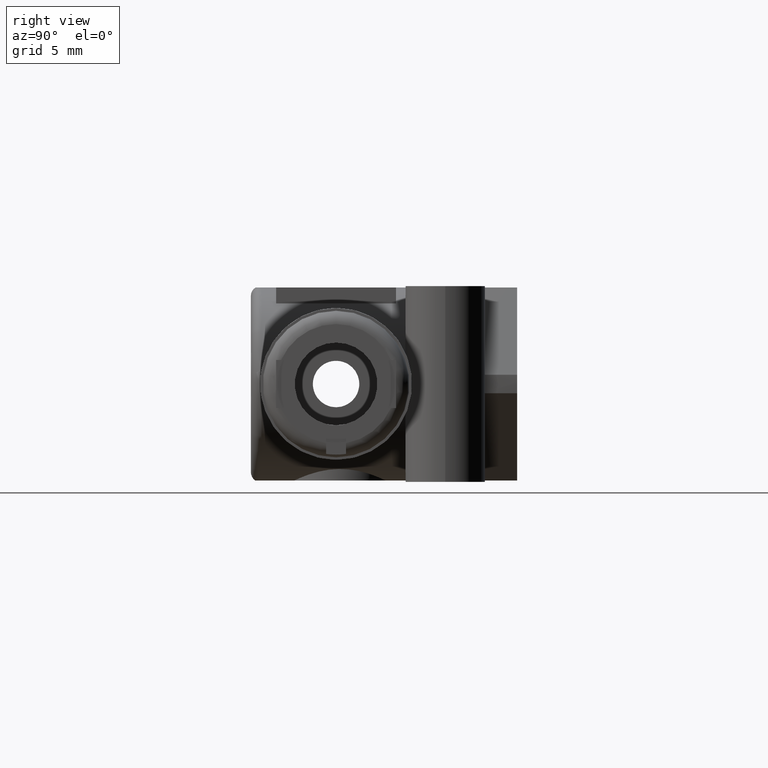
[diagram: clean part render]
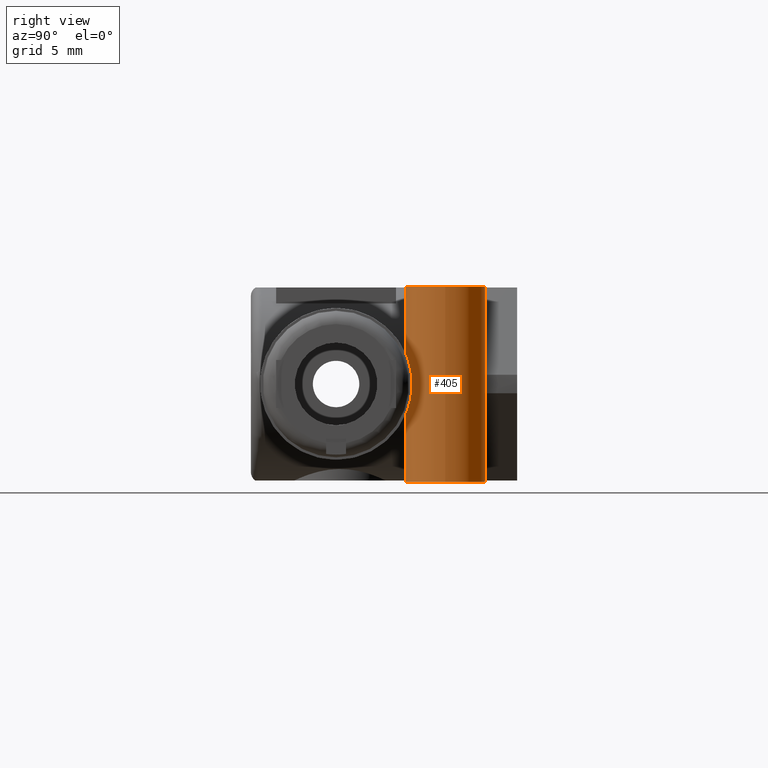
[diagram: same view with one face highlighted and labeled with its STEP entity id]
A machine part, right view. The second image highlights one B-rep face of the part: STEP entity #405.
In plain terms, the highlighted cylindrical surface (bore or boss wall) has radius 3 mm, axis along (0, 0, 1).
Its self-contained STEP definition (entity closure, byte-faithful):
#405 = ADVANCED_FACE( '', ( #828, #829, #830, #831 ), #832, .T. );
#828 = FACE_OUTER_BOUND( '', #1254, .T. );
#829 = FACE_OUTER_BOUND( '', #1255, .T. );
#830 = FACE_BOUND( '', #1256, .T. );
#831 = FACE_BOUND( '', #1257, .T. );
#832 = CYLINDRICAL_SURFACE( '', #1258, 3.00000000000000 );
#1254 = EDGE_LOOP( '', ( #2112 ) );
#1255 = EDGE_LOOP( '', ( #2113 ) );
#1256 = EDGE_LOOP( '', ( #2114 ) );
#1257 = EDGE_LOOP( '', ( #2115, #2116, #2117, #2118, #2119, #2120 ) );
#1258 = AXIS2_PLACEMENT_3D( '', #2121, #2122, #2123 );
#2112 = ORIENTED_EDGE( '', *, *, #2625, .F. );
#2113 = ORIENTED_EDGE( '', *, *, #2382, .T. );
#2114 = ORIENTED_EDGE( '', *, *, #2397, .T. );
#2115 = ORIENTED_EDGE( '', *, *, #2606, .T. );
#2116 = ORIENTED_EDGE( '', *, *, #2517, .T. );
#2117 = ORIENTED_EDGE( '', *, *, #2418, .T. );
#2118 = ORIENTED_EDGE( '', *, *, #2364, .T. );
#2119 = ORIENTED_EDGE( '', *, *, #2455, .T. );
#2120 = ORIENTED_EDGE( '', *, *, #2403, .T. );
#2121 = CARTESIAN_POINT( '', ( 10.0000000000000, 8.20000000000000, 7.35000000000000 ) );
#2122 = DIRECTION( '', ( 0.000000000000000, -0.000000000000000, 1.00000000000000 ) );
#2123 = DIRECTION( '', ( -1.00000000000000, 0.000000000000000, 0.000000000000000 ) );
#2364 = EDGE_CURVE( '', #2784, #2785, #2786, .F. );
#2382 = EDGE_CURVE( '', #2814, #2814, #2815, .T. );
#2397 = EDGE_CURVE( '', #2835, #2835, #2836, .T. );
#2403 = EDGE_CURVE( '', #2845, #2846, #2847, .F. );
#2418 = EDGE_CURVE( '', #2871, #2784, #2872, .T. );
#2455 = EDGE_CURVE( '', #2785, #2845, #2926, .T. );
#2517 = EDGE_CURVE( '', #3022, #2871, #3023, .T. );
#2606 = EDGE_CURVE( '', #2846, #3022, #3145, .T. );
#2625 = EDGE_CURVE( '', #3166, #3166, #3167, .T. );
#2784 = VERTEX_POINT( '', #3443 );
#2785 = VERTEX_POINT( '', #3444 );
#2786 = ELLIPSE( '', #3445, 6.00000000000000, 3.00000000000000 );
#2814 = VERTEX_POINT( '', #3482 );
#2815 = CIRCLE( '', #3483, 3.00000000000000 );
#2835 = VERTEX_POINT( '', #3509 );
#2836 = B_SPLINE_CURVE_WITH_KNOTS( '', 3, ( #3510, #3511, #3512, #3513, #3514, #3515, #3516, #3517, #3518, #3519, #3520, #3521, #3522, #3523, #3524, #3525, #3526, #3527, #3528, #3529, #3530, #3531, #3532, #3533, #3534, #3535, #3536, #3537, #3538, #3539, #3540, #3541, #3542, #3543, #3544, #3545, #3546, #3547, #3548, #3549, #3550, #3551, #3552, #3553, #3554, #3555, #3556, #3557, #3558, #3559 ), .UNSPECIFIED., .T., .F., ( 2, 2, 2, 2, 2, 2, 2, 2, 2, 2, 2, 2, 2, 2, 2, 2, 2, 2, 2, 2, 2, 2, 2, 2, 2, 2, 2 ), ( -0.000802771667562874, 0.000000000000000, 0.000802771667562878, 0.00120415750134432, 0.00160554333512575, 0.00200692916890719, 0.00240831500268863, 0.00280970083647007, 0.00321108667025151, 0.00401385833781439, 0.00481663000537726, 0.00521801583915870, 0.00561940167294014, 0.00642217334050301, 0.00722494500806589, 0.00762633084184732, 0.00802771667562876, 0.00883048834319163, 0.00923187417697307, 0.00963326001075451, 0.0100346458445359, 0.0104360316783174, 0.0112388033458803, 0.0116401891796617, 0.0120415750134431, 0.0128443466810060, 0.0136471183485689 ), .UNSPECIFIED. );
#2845 = VERTEX_POINT( '', #3650 );
#2846 = VERTEX_POINT( '', #3651 );
#2847 = ELLIPSE( '', #3652, 6.00000000000000, 3.00000000000000 );
#2871 = VERTEX_POINT( '', #3680 );
#2872 = LINE( '', #3681, #3682 );
#2926 = B_SPLINE_CURVE_WITH_KNOTS( '', 3, ( #3756, #3757, #3758, #3759 ), .UNSPECIFIED., .F., .F., ( 4, 4 ), ( 6.50521303491303E-019, 0.00139580420472248 ), .UNSPECIFIED. );
#3022 = VERTEX_POINT( '', #3933 );
#3023 = B_SPLINE_CURVE_WITH_KNOTS( '', 3, ( #3934, #3935, #3936, #3937, #3938, #3939, #3940, #3941, #3942, #3943, #3944, #3945, #3946, #3947, #3948, #3949, #3950, #3951 ), .UNSPECIFIED., .F., .F., ( 4, 2, 2, 2, 2, 2, 2, 2, 4 ), ( 0.000894496190049907, 0.00145695186895388, 0.00201940754785785, 0.00258186322676182, 0.00314431890566580, 0.00370677458456977, 0.00426923026347374, 0.00483168594237771, 0.00539414162128169 ), .UNSPECIFIED. );
#3145 = LINE( '', #4316, #4317 );
#3166 = VERTEX_POINT( '', #4340 );
#3167 = CIRCLE( '', #4341, 3.00000000000000 );
#3443 = CARTESIAN_POINT( '', ( 7.10863354103981, 7.40000000000000, -4.18748553453079 ) );
#3444 = CARTESIAN_POINT( '', ( 9.12334547496256, 11.0690550436915, -0.697902102361236 ) );
#3445 = AXIS2_PLACEMENT_3D( '', #4514, #4515, #4516 );
#3482 = CARTESIAN_POINT( '', ( 13.0000000000000, 8.20000000000000, -7.35000000000000 ) );
#3483 = AXIS2_PLACEMENT_3D( '', #4538, #4539, #4540 );
#3509 = CARTESIAN_POINT( '', ( 8.34168760482230, 5.70000000000000, 0.000000000000000 ) );
#3510 = CARTESIAN_POINT( '', ( 8.34168760482230, 5.70000000000000, -0.270777266124286 ) );
#3511 = CARTESIAN_POINT( '', ( 8.34168760482230, 5.70000000000000, 0.270777266124287 ) );
#3512 = CARTESIAN_POINT( '', ( 8.36952782892625, 5.68078074329505, 0.536322799105093 ) );
#3513 = CARTESIAN_POINT( '', ( 8.45903112690557, 5.62577366512697, 0.926228194518947 ) );
#3514 = CARTESIAN_POINT( '', ( 8.49727291635714, 5.60294859056329, 1.05487810628289 ) );
#3515 = CARTESIAN_POINT( '', ( 8.59086774739916, 5.55099811139156, 1.30085383304099 ) );
#3516 = CARTESIAN_POINT( '', ( 8.64636184186409, 5.52174301056769, 1.41919230126692 ) );
#3517 = CARTESIAN_POINT( '', ( 8.77907360342671, 5.45869821093059, 1.64510379754946 ) );
#3518 = CARTESIAN_POINT( '', ( 8.85655913873860, 5.42487313120833, 1.75245403952511 ) );
#3519 = CARTESIAN_POINT( '', ( 9.03203697225922, 5.35890272640682, 1.94486637568329 ) );
#3520 = CARTESIAN_POINT( '', ( 9.13216990756250, 5.32600349484911, 2.03218121047351 ) );
#3521 = CARTESIAN_POINT( '', ( 9.35268703535521, 5.26845247236849, 2.17703519625678 ) );
#3522 = CARTESIAN_POINT( '', ( 9.47309831150717, 5.24378144897569, 2.23486492475045 ) );
#3523 = CARTESIAN_POINT( '', ( 9.73044274473129, 5.20931573099250, 2.31406454778933 ) );
#3524 = CARTESIAN_POINT( '', ( 9.86262550850884, 5.20006675091037, 2.33437482259272 ) );
#3525 = CARTESIAN_POINT( '', ( 10.2703523894978, 5.19986757207011, 2.33481848074896 ) );
#3526 = CARTESIAN_POINT( '', ( 10.5358890005483, 5.23939432917117, 2.25015969200445 ) );
#3527 = CARTESIAN_POINT( '', ( 10.9787261668711, 5.35492389392931, 1.95940339550014 ) );
#3528 = CARTESIAN_POINT( '', ( 11.1545250303451, 5.42716436984180, 1.75805474488474 ) );
#3529 = CARTESIAN_POINT( '', ( 11.3534067653407, 5.52162801371392, 1.41962723064639 ) );
#3530 = CARTESIAN_POINT( '', ( 11.4089524323726, 5.55090067446711, 1.30128603689225 ) );
#3531 = CARTESIAN_POINT( '', ( 11.5027040447493, 5.60293343421435, 1.05497894736016 ) );
#3532 = CARTESIAN_POINT( '', ( 11.5409943139126, 5.62578970956022, 0.926096028687228 ) );
#3533 = CARTESIAN_POINT( '', ( 11.6303448980139, 5.68070170619115, 0.536919889231808 ) );
#3534 = CARTESIAN_POINT( '', ( 11.6582328078780, 5.69994720776470, 0.271709988567956 ) );
#3535 = CARTESIAN_POINT( '', ( 11.6583916567525, 5.70005257617283, -0.269490478602999 ) );
#3536 = CARTESIAN_POINT( '', ( 11.6305594661395, 5.68084902775390, -0.535176070207176 ) );
#3537 = CARTESIAN_POINT( '', ( 11.5416092320523, 5.62615998476062, -0.923817406981559 ) );
#3538 = CARTESIAN_POINT( '', ( 11.5034444579463, 5.60336230939661, -1.05272785700643 ) );
#3539 = CARTESIAN_POINT( '', ( 11.4097350099732, 5.55131735837467, -1.29953095303344 ) );
#3540 = CARTESIAN_POINT( '', ( 11.3542263311106, 5.52204549901944, -1.41800414833100 ) );
#3541 = CARTESIAN_POINT( '', ( 11.1556932004280, 5.42766338853561, -1.75651904983951 ) );
#3542 = CARTESIAN_POINT( '', ( 10.9798170176391, 5.35532868539887, -1.95830688905281 ) );
#3543 = CARTESIAN_POINT( '', ( 10.6482621208861, 5.26865128453358, -2.17656643410547 ) );
#3544 = CARTESIAN_POINT( '', ( 10.5289228999292, 5.24411677670146, -2.23408496255428 ) );
#3545 = CARTESIAN_POINT( '', ( 10.2704409298415, 5.20937017213534, -2.31394874559906 ) );
#3546 = CARTESIAN_POINT( '', ( 10.1381371438911, 5.20012120699618, -2.33425352488461 ) );
#3547 = CARTESIAN_POINT( '', ( 9.86717863172133, 5.19988114779347, -2.33478824194181 ) );
#3548 = CARTESIAN_POINT( '', ( 9.73237999597438, 5.20915199155328, -2.31442707928545 ) );
#3549 = CARTESIAN_POINT( '', ( 9.47547859021899, 5.24336854395654, -2.23582724929285 ) );
#3550 = CARTESIAN_POINT( '', ( 9.35402542213755, 5.26814394281246, -2.17778551942408 ) );
#3551 = CARTESIAN_POINT( '', ( 9.02222656281172, 5.35461575762143, -1.96021722557772 ) );
#3552 = CARTESIAN_POINT( '', ( 8.84608904291738, 5.42689085805259, -1.75895293578760 ) );
#3553 = CARTESIAN_POINT( '', ( 8.64673883492989, 5.52154980975565, -1.41994811604861 ) );
#3554 = CARTESIAN_POINT( '', ( 8.59117749893205, 5.55083218753488, -1.30156576308658 ) );
#3555 = CARTESIAN_POINT( '', ( 8.49747591821401, 5.60282993976718, -1.05551318128239 ) );
#3556 = CARTESIAN_POINT( '', ( 8.45919154784007, 5.62567695809479, -0.926828780028971 ) );
#3557 = CARTESIAN_POINT( '', ( 8.36955739190155, 5.68075881602745, -0.536647529986838 ) );
#3558 = CARTESIAN_POINT( '', ( 8.34168760482230, 5.70000000000000, -0.270777266124286 ) );
#3559 = CARTESIAN_POINT( '', ( 8.34168760482230, 5.70000000000000, 0.270777266124287 ) );
#3650 = CARTESIAN_POINT( '', ( 9.12334547496256, 11.0690550436915, 0.697902102361240 ) );
#3651 = CARTESIAN_POINT( '', ( 7.10863354103981, 7.40000000000000, 4.18748553453079 ) );
#3652 = AXIS2_PLACEMENT_3D( '', #4559, #4560, #4561 );
#3680 = CARTESIAN_POINT( '', ( 7.10863354103981, 7.40000000000000, -2.05604697884164 ) );
#3681 = CARTESIAN_POINT( '', ( 7.10863354103981, 7.40000000000000, 7.35000000000000 ) );
#3682 = VECTOR( '', #4584, 1000.00000000000 );
#3756 = CARTESIAN_POINT( '', ( 9.12334547496256, 11.0690550436915, -0.697902102361237 ) );
#3757 = CARTESIAN_POINT( '', ( 9.15893675711645, 11.0799301430106, -0.232634034120411 ) );
#3758 = CARTESIAN_POINT( '', ( 9.15893675711645, 11.0799301430106, 0.232634034120416 ) );
#3759 = CARTESIAN_POINT( '', ( 9.12334547496256, 11.0690550436915, 0.697902102361241 ) );
#3933 = CARTESIAN_POINT( '', ( 7.10863354103981, 7.40000000000000, 2.05604697884164 ) );
#3934 = CARTESIAN_POINT( '', ( 7.10863354103981, 7.40000000000000, 2.05604697884164 ) );
#3935 = CARTESIAN_POINT( '', ( 7.14549220931862, 7.26678510352088, 1.92861080238208 ) );
#3936 = CARTESIAN_POINT( '', ( 7.18537629520818, 7.15737480778430, 1.77700313586430 ) );
#3937 = CARTESIAN_POINT( '', ( 7.25761606476487, 6.97995727829591, 1.45409136751378 ) );
#3938 = CARTESIAN_POINT( '', ( 7.29014095421125, 6.91147827007933, 1.28312340434027 ) );
#3939 = CARTESIAN_POINT( '', ( 7.34401627927292, 6.80379988119411, 0.926275171214414 ) );
#3940 = CARTESIAN_POINT( '', ( 7.36493990655526, 6.76567804173931, 0.742799652837544 ) );
#3941 = CARTESIAN_POINT( '', ( 7.39281966605689, 6.71560386610781, 0.374577811126351 ) );
#3942 = CARTESIAN_POINT( '', ( 7.39997938178111, 6.70337286322299, 0.188602788328481 ) );
#3943 = CARTESIAN_POINT( '', ( 7.40002052939974, 6.70330138165433, -0.186981354721003 ) );
#3944 = CARTESIAN_POINT( '', ( 7.39277877688751, 6.71567534543815, -0.375330095933151 ) );
#3945 = CARTESIAN_POINT( '', ( 7.36488354065843, 6.76578124677737, -0.743331122347342 ) );
#3946 = CARTESIAN_POINT( '', ( 7.34423130034377, 6.80341028575781, -0.924410582094810 ) );
#3947 = CARTESIAN_POINT( '', ( 7.29072754252264, 6.91026631929091, -1.27967191808674 ) );
#3948 = CARTESIAN_POINT( '', ( 7.25765143571198, 6.97988285555176, -1.45390724187445 ) );
#3949 = CARTESIAN_POINT( '', ( 7.18545180419701, 7.15717693364059, -1.77669158826991 ) );
#3950 = CARTESIAN_POINT( '', ( 7.14543131994872, 7.26700517037317, -1.92882132296921 ) );
#3951 = CARTESIAN_POINT( '', ( 7.10863354103981, 7.40000000000000, -2.05604697884164 ) );
#4316 = CARTESIAN_POINT( '', ( 7.10863354103981, 7.40000000000000, 7.35000000000000 ) );
#4317 = VECTOR( '', #4800, 1000.00000000000 );
#4340 = CARTESIAN_POINT( '', ( 13.0000000000000, 8.20000000000000, 7.35000000000000 ) );
#4341 = AXIS2_PLACEMENT_3D( '', #4821, #4822, #4823 );
#4514 = CARTESIAN_POINT( '', ( 10.0000000000000, 8.20000000000000, 0.820508075688777 ) );
#4515 = DIRECTION( '', ( -0.866025403784439, 0.000000000000000, 0.500000000000000 ) );
#4516 = DIRECTION( '', ( -0.500000000000000, -0.000000000000000, -0.866025403784439 ) );
#4538 = CARTESIAN_POINT( '', ( 10.0000000000000, 8.20000000000000, -7.35000000000000 ) );
#4539 = DIRECTION( '', ( 0.000000000000000, 0.000000000000000, 1.00000000000000 ) );
#4540 = DIRECTION( '', ( 1.00000000000000, 0.000000000000000, 0.000000000000000 ) );
#4559 = CARTESIAN_POINT( '', ( 10.0000000000000, 8.20000000000000, -0.820508075688773 ) );
#4560 = DIRECTION( '', ( -0.866025403784439, 0.000000000000000, -0.500000000000000 ) );
#4561 = DIRECTION( '', ( 0.500000000000000, -0.000000000000000, -0.866025403784438 ) );
#4584 = DIRECTION( '', ( -0.000000000000000, -0.000000000000000, -1.00000000000000 ) );
#4800 = DIRECTION( '', ( -0.000000000000000, -0.000000000000000, -1.00000000000000 ) );
#4821 = CARTESIAN_POINT( '', ( 10.0000000000000, 8.20000000000000, 7.35000000000000 ) );
#4822 = DIRECTION( '', ( 0.000000000000000, 0.000000000000000, 1.00000000000000 ) );
#4823 = DIRECTION( '', ( 1.00000000000000, 0.000000000000000, 0.000000000000000 ) );